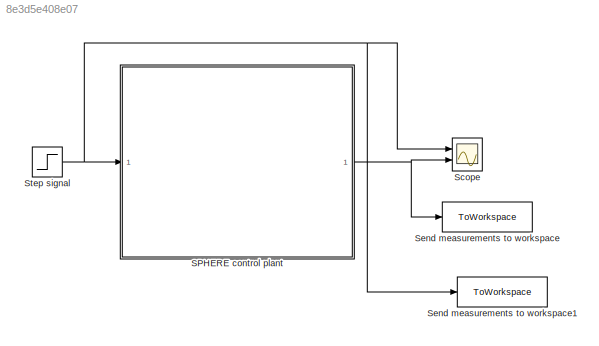
MODEL slx_8e3d5e408e07
KIND model
CONFIG AbsTol = auto
CONFIG EnableMultiTasking = off
CONFIG FixedStep = 0.01428571
CONFIG MaxStep = auto
CONFIG MinStep = auto
CONFIG RelTol = 1e-3
CONFIG SampleTimeConstraint = Unconstrained
CONFIG Solver = ode4
CONFIG SolverName = ode4
CONFIG StartTime = 0.0
CONFIG StopTime = 35
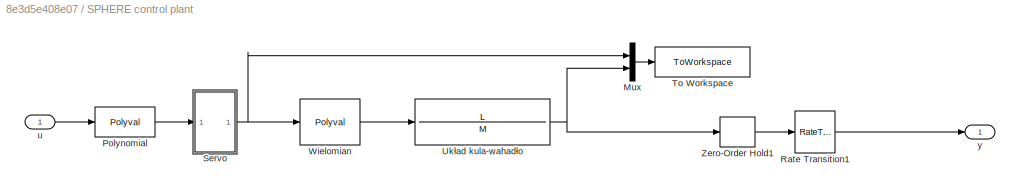
BLOCK [SubSystem] SPHERE control plant
  Ports = [1, 1]
  RequestExecContextInheritance = off
BLOCK [Mux] SPHERE control plant/Mux
  DisplayOption = bar
  Inputs = 2
  Ports = [2, 1]
BLOCK [Polyval] SPHERE control plant/Polynomial
  Coefs = [0.000325 0.001274 1.044515 0]
BLOCK [RateTransition] SPHERE control plant/Rate Transition1
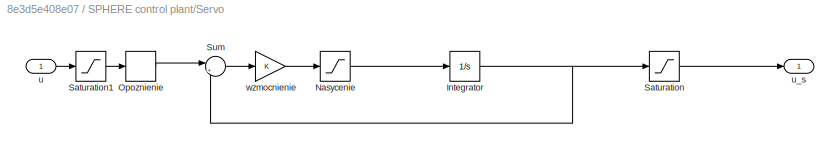
BLOCK [SubSystem] SPHERE control plant/Servo
  Ports = [1, 1]
  RequestExecContextInheritance = off
BLOCK [Integrator] SPHERE control plant/Servo/Integrator
  Ports = [1, 1]
BLOCK [Saturate] SPHERE control plant/Servo/Nasycenie
  LowerLimit = Smin
  UpperLimit = Smax
BLOCK [TransportDelay] SPHERE control plant/Servo/Opoznienie
  DelayTime = Top
  Ports = [1, 1]
BLOCK [Saturate] SPHERE control plant/Servo/Saturation
  LowerLimit = -60
  UpperLimit = 60
BLOCK [Saturate] SPHERE control plant/Servo/Saturation1
  LowerLimit = -60
  UpperLimit = 60
BLOCK [Sum] SPHERE control plant/Servo/Sum
  Inputs = |+-
  Ports = [2, 1]
BLOCK [Inport] SPHERE control plant/Servo/u
BLOCK [Outport] SPHERE control plant/Servo/u_s
BLOCK [Gain] SPHERE control plant/Servo/wzmocnienie
  Gain = K
BLOCK [ToWorkspace] SPHERE control plant/To Workspace
  MaxDataPoints = inf
  Ports = [1]
  SampleTime = -1
  SaveFormat = Structure With Time
  VariableName = robot_data
BLOCK [TransferFcn] SPHERE control plant/Układ kula-wahadło
  Denominator = M
  Numerator = L
BLOCK [Polyval] SPHERE control plant/Wielomian
  Coefs = [-0.000067 -0.000287 0.871698 0]
BLOCK [ZeroOrderHold] SPHERE control plant/Zero-Order Hold1
  SampleTime = -1
BLOCK [Inport] SPHERE control plant/u
BLOCK [Outport] SPHERE control plant/y
BLOCK [Scope] Scope
  Floating = off
  NumInputPorts = 2
  Ports = [2]
  ScopeSpecificationString = Simulink.scopes.TimeScopeBlockCfg('CurrentConfiguration', extmgr.ConfigurationSet(extmgr.Configuration('Core','General UI',true),extmgr.Configuration('Core','Source UI',true),extmgr.Configuration('Sources','WiredSimulink',true),extmgr.Configuration('Visuals','Time Domain',true,'SerializedDisplays',{struct('MinYLimReal','-31.18867','MaxYLimReal','3.64196','YLabelReal','','MinYLimMag','0.00000','Max...<+1429ch>
BLOCK [ToWorkspace] Send measurements to workspace
  FixptAsFi = on
  MaxDataPoints = inf
  Ports = [1]
  SampleTime = -1
  SaveFormat = Timeseries
  VariableName = position
BLOCK [ToWorkspace] Send measurements to workspace1
  FixptAsFi = on
  MaxDataPoints = inf
  Ports = [1]
  SampleTime = -1
  SaveFormat = Timeseries
  VariableName = setpoint
BLOCK [Step] Step signal
  After = Final_val
  SampleTime = 0
  Time = Step_time
LINE SPHERE control plant/Mux:1 -> SPHERE control plant/To Workspace:1
LINE SPHERE control plant/Polynomial:1 -> SPHERE control plant/Servo:1
LINE SPHERE control plant/Rate Transition1:1 -> SPHERE control plant/y:1
NET SPHERE control plant/Servo/Integrator:1 -> SPHERE control plant/Servo/Saturation:1, SPHERE control plant/Servo/Sum:2
LINE SPHERE control plant/Servo/Nasycenie:1 -> SPHERE control plant/Servo/Integrator:1
LINE SPHERE control plant/Servo/Opoznienie:1 -> SPHERE control plant/Servo/Sum:1
LINE SPHERE control plant/Servo/Saturation1:1 -> SPHERE control plant/Servo/Opoznienie:1
LINE SPHERE control plant/Servo/Saturation:1 -> SPHERE control plant/Servo/u_s:1
LINE SPHERE control plant/Servo/Sum:1 -> SPHERE control plant/Servo/wzmocnienie:1
LINE SPHERE control plant/Servo/u:1 -> SPHERE control plant/Servo/Saturation1:1
LINE SPHERE control plant/Servo/wzmocnienie:1 -> SPHERE control plant/Servo/Nasycenie:1
NET SPHERE control plant/Servo:1 -> SPHERE control plant/Mux:1, SPHERE control plant/Wielomian:1
NET SPHERE control plant/Układ kula-wahadło:1 -> SPHERE control plant/Mux:2, SPHERE control plant/Zero-Order Hold1:1
LINE SPHERE control plant/Wielomian:1 -> SPHERE control plant/Układ kula-wahadło:1
LINE SPHERE control plant/Zero-Order Hold1:1 -> SPHERE control plant/Rate Transition1:1
LINE SPHERE control plant/u:1 -> SPHERE control plant/Polynomial:1
NET SPHERE control plant:1 -> Scope:2, Send measurements to workspace:1
NET Step signal:1 -> SPHERE control plant:1, Scope:1, Send measurements to workspace1:1
note: NET lines group one-source signal fan-out (src -> all destinations, sorted); 1:1 wires keep LINE
